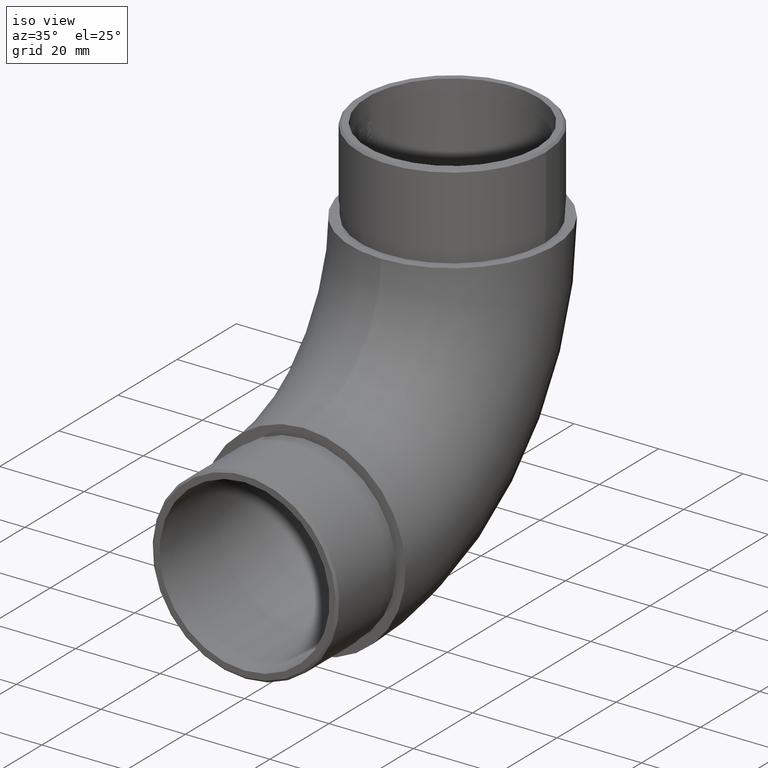
[diagram: clean part render]
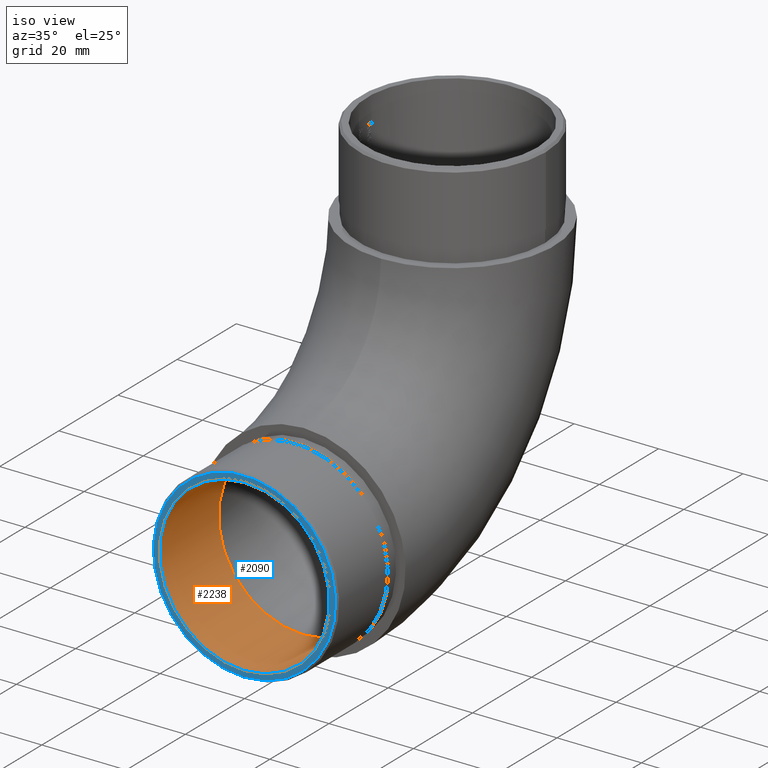
[diagram: same view with the hole feature highlighted: cylindrical wall and planar end face, labeled with their STEP entity ids]
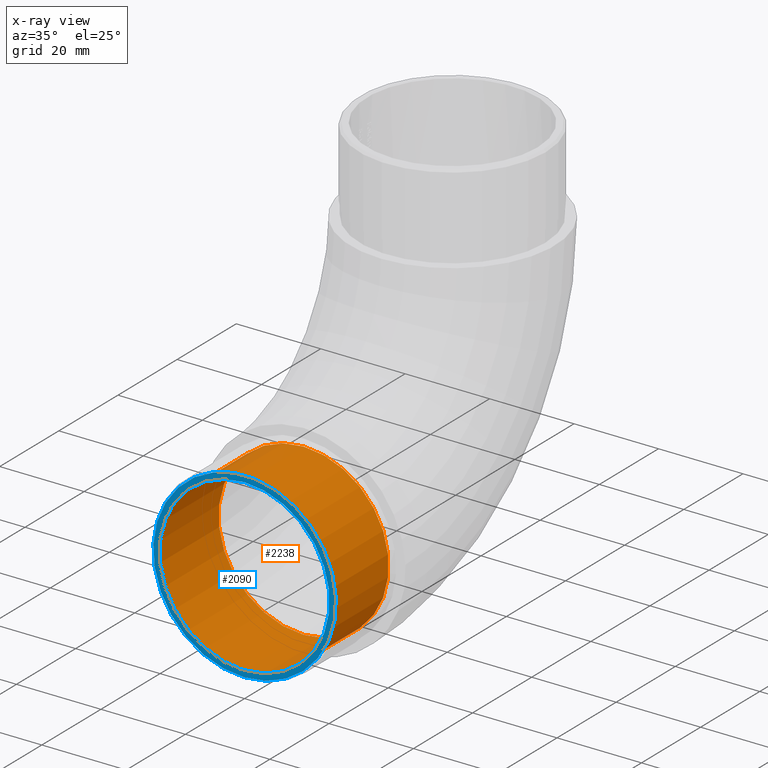
[diagram: x-ray of the same camera — body ghosted, the hole faces saturated]
A machine part, iso view. The highlighted faces form one hole feature of diameter 40.3 mm: the cylindrical wall (entity #2238, orange) and its adjacent planar end face (entity #2090, blue) — they share a circular edge in the B-rep.
The next image is the same camera in x-ray (body ghosted, the hole faces saturated) — the bore reads through the body.
Wall:
#423 = FACE_OUTER_BOUND ( 'NONE', #8335, .T. ) ;
#568 = CARTESIAN_POINT ( 'NONE',  ( 0.0000000000000000000, -6.938893903907228400E-015, 44.30000000000001800 ) ) ;
#994 = FACE_OUTER_BOUND ( 'NONE', #2272, .T. ) ;
#1090 = AXIS2_PLACEMENT_3D ( 'NONE', #5447, #7207, #7248 ) ;
#1554 = CARTESIAN_POINT ( 'NONE',  ( 0.0000000000000000000, -20.00000000000000000, 4.000000000000003600 ) ) ;
#2164 = ORIENTED_EDGE ( 'NONE', *, *, #10597, .T. ) ;
#2182 = CIRCLE ( 'NONE', #7692, 20.15000000000000900 ) ;
#2238 = ADVANCED_FACE ( 'NONE', ( #994, #423 ), #11136, .F. ) ;
#2272 = EDGE_LOOP ( 'NONE', ( #2164 ) ) ;
#2597 = DIRECTION ( 'NONE',  ( 0.0000000000000000000, 0.0000000000000000000, -1.000000000000000000 ) ) ;
#4083 = CIRCLE ( 'NONE', #9488, 20.15000000000000900 ) ;
#4368 = DIRECTION ( 'NONE',  ( 0.0000000000000000000, -1.000000000000000000, 0.0000000000000000000 ) ) ;
#5447 = CARTESIAN_POINT ( 'NONE',  ( 0.0000000000000000000, -3.000000000000000000, 24.15000000000001300 ) ) ;
#5635 = ORIENTED_EDGE ( 'NONE', *, *, #7683, .T. ) ;
#5793 = CARTESIAN_POINT ( 'NONE',  ( 0.0000000000000000000, -6.938893903907228400E-015, 24.15000000000001300 ) ) ;
#5825 = DIRECTION ( 'NONE',  ( 0.0000000000000000000, 1.000000000000000000, 0.0000000000000000000 ) ) ;
#6705 = VERTEX_POINT ( 'NONE', #568 ) ;
#7207 = DIRECTION ( 'NONE',  ( -0.0000000000000000000, 1.000000000000000000, -0.0000000000000000000 ) ) ;
#7248 = DIRECTION ( 'NONE',  ( 0.0000000000000000000, 0.0000000000000000000, 1.000000000000000000 ) ) ;
#7652 = DIRECTION ( 'NONE',  ( 0.0000000000000000000, 0.0000000000000000000, 1.000000000000000000 ) ) ;
#7683 = EDGE_CURVE ( 'NONE', #11572, #11572, #4083, .T. ) ;
#7692 = AXIS2_PLACEMENT_3D ( 'NONE', #5793, #5825, #7652 ) ;
#8031 = CARTESIAN_POINT ( 'NONE',  ( 0.0000000000000000000, -20.00000000000000000, 24.15000000000001300 ) ) ;
#8335 = EDGE_LOOP ( 'NONE', ( #5635 ) ) ;
#9488 = AXIS2_PLACEMENT_3D ( 'NONE', #8031, #4368, #2597 ) ;
#10597 = EDGE_CURVE ( 'NONE', #6705, #6705, #2182, .T. ) ;
#11136 = CYLINDRICAL_SURFACE ( 'NONE', #1090, 20.15000000000000900 ) ;
#11572 = VERTEX_POINT ( 'NONE', #1554 ) ;
End face:
#173 = EDGE_LOOP ( 'NONE', ( #10677 ) ) ;
#491 = CARTESIAN_POINT ( 'NONE',  ( 0.0000000000000000000, -20.00000000000000000, 2.549999999999982900 ) ) ;
#986 = VERTEX_POINT ( 'NONE', #491 ) ;
#1554 = CARTESIAN_POINT ( 'NONE',  ( 0.0000000000000000000, -20.00000000000000000, 4.000000000000003600 ) ) ;
#2090 = ADVANCED_FACE ( 'NONE', ( #7707, #6422 ), #6225, .T. ) ;
#2597 = DIRECTION ( 'NONE',  ( 0.0000000000000000000, 0.0000000000000000000, -1.000000000000000000 ) ) ;
#4083 = CIRCLE ( 'NONE', #9488, 20.15000000000000900 ) ;
#4368 = DIRECTION ( 'NONE',  ( 0.0000000000000000000, -1.000000000000000000, 0.0000000000000000000 ) ) ;
#4430 = DIRECTION ( 'NONE',  ( 0.0000000000000000000, 0.0000000000000000000, -1.000000000000000000 ) ) ;
#5188 = DIRECTION ( 'NONE',  ( 0.0000000000000000000, -1.000000000000000000, 0.0000000000000000000 ) ) ;
#5224 = CIRCLE ( 'NONE', #6473, 21.60000000000003000 ) ;
#5316 = DIRECTION ( 'NONE',  ( 0.0000000000000000000, -1.000000000000000000, 0.0000000000000000000 ) ) ;
#6225 = PLANE ( 'NONE',  #11268 ) ;
#6422 = FACE_BOUND ( 'NONE', #9167, .T. ) ;
#6473 = AXIS2_PLACEMENT_3D ( 'NONE', #7972, #5316, #4430 ) ;
#6946 = CARTESIAN_POINT ( 'NONE',  ( 0.0000000000000000000, -20.00000000000000000, 24.15000000000001300 ) ) ;
#6985 = DIRECTION ( 'NONE',  ( 0.0000000000000000000, -0.0000000000000000000, -1.000000000000000000 ) ) ;
#7683 = EDGE_CURVE ( 'NONE', #11572, #11572, #4083, .T. ) ;
#7707 = FACE_OUTER_BOUND ( 'NONE', #173, .T. ) ;
#7972 = CARTESIAN_POINT ( 'NONE',  ( 0.0000000000000000000, -20.00000000000000000, 24.15000000000001300 ) ) ;
#8031 = CARTESIAN_POINT ( 'NONE',  ( 0.0000000000000000000, -20.00000000000000000, 24.15000000000001300 ) ) ;
#9167 = EDGE_LOOP ( 'NONE', ( #11453 ) ) ;
#9488 = AXIS2_PLACEMENT_3D ( 'NONE', #8031, #4368, #2597 ) ;
#9541 = EDGE_CURVE ( 'NONE', #986, #986, #5224, .T. ) ;
#10677 = ORIENTED_EDGE ( 'NONE', *, *, #9541, .T. ) ;
#11268 = AXIS2_PLACEMENT_3D ( 'NONE', #6946, #5188, #6985 ) ;
#11453 = ORIENTED_EDGE ( 'NONE', *, *, #7683, .F. ) ;
#11572 = VERTEX_POINT ( 'NONE', #1554 ) ;